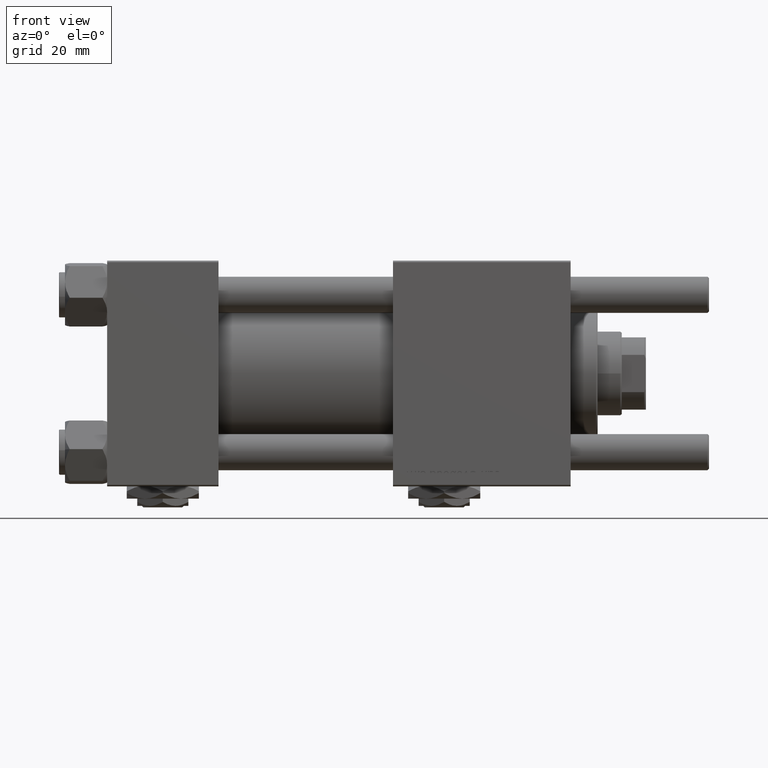
[diagram: clean part render]
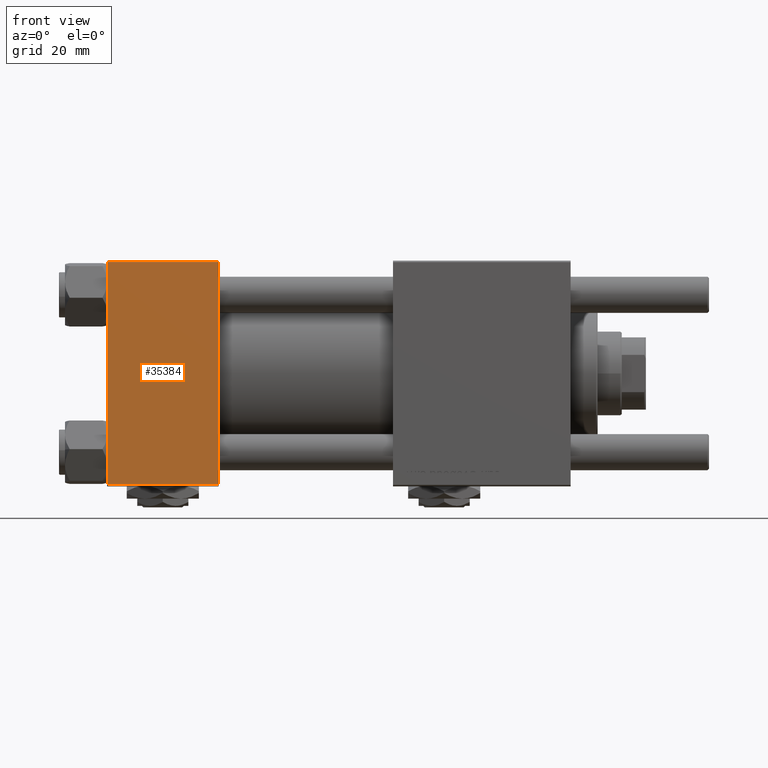
[diagram: same view with one face highlighted and labeled with its STEP entity id]
A machine part, front view. The second image highlights one B-rep face of the part: STEP entity #35384.
In plain terms, the highlighted planar face has unit normal (0, 1, 0).
Its self-contained STEP definition (entity closure, byte-faithful):
#271 = FACE_OUTER_BOUND ( 'NONE', #13562, .T. ) ;
#498 = LINE ( 'NONE', #49209, #49917 ) ;
#1143 = VERTEX_POINT ( 'NONE', #2072 ) ;
#1943 = AXIS2_PLACEMENT_3D ( 'NONE', #36502, #54612, #13929 ) ;
#2072 = CARTESIAN_POINT ( 'NONE',  ( 0.000000000000000000, -37.50000000000000711, 36.99999999999999289 ) ) ;
#3948 = EDGE_CURVE ( 'NONE', #43668, #1143, #25959, .T. ) ;
#10045 = ORIENTED_EDGE ( 'NONE', *, *, #40020, .T. ) ;
#13015 = EDGE_CURVE ( 'NONE', #43668, #16494, #498, .T. ) ;
#13023 = CARTESIAN_POINT ( 'NONE',  ( 37.00000000000000000, -37.50000000000000000, -37.00000000000003553 ) ) ;
#13562 = EDGE_LOOP ( 'NONE', ( #10045, #14781, #53721, #45547 ) ) ;
#13929 = DIRECTION ( 'NONE',  ( 0.000000000000000000, -9.251858538542971581E-17, 1.000000000000000000 ) ) ;
#14392 = VECTOR ( 'NONE', #55009, 1000.000000000000000 ) ;
#14781 = ORIENTED_EDGE ( 'NONE', *, *, #33318, .T. ) ;
#16494 = VERTEX_POINT ( 'NONE', #56845 ) ;
#16680 = VERTEX_POINT ( 'NONE', #36907 ) ;
#17174 = CARTESIAN_POINT ( 'NONE',  ( 37.00000000000000000, -37.50000000000000711, 36.99999999999999289 ) ) ;
#22632 = LINE ( 'NONE', #58293, #14392 ) ;
#23675 = VECTOR ( 'NONE', #40651, 1000.000000000000000 ) ;
#25959 = LINE ( 'NONE', #57751, #39163 ) ;
#33318 = EDGE_CURVE ( 'NONE', #16680, #16494, #35590, .T. ) ;
#35384 = ADVANCED_FACE ( 'NONE', ( #271 ), #36792, .F. ) ;
#35590 = LINE ( 'NONE', #13023, #23675 ) ;
#36502 = CARTESIAN_POINT ( 'NONE',  ( 37.00000000000000000, -37.50000000000000711, 37.49999999999999289 ) ) ;
#36792 = PLANE ( 'NONE',  #1943 ) ;
#36907 = CARTESIAN_POINT ( 'NONE',  ( 0.000000000000000000, -37.50000000000000000, -37.00000000000003553 ) ) ;
#39163 = VECTOR ( 'NONE', #39341, 1000.000000000000000 ) ;
#39341 = DIRECTION ( 'NONE',  ( -1.000000000000000000, 0.000000000000000000, 0.000000000000000000 ) ) ;
#40020 = EDGE_CURVE ( 'NONE', #1143, #16680, #22632, .T. ) ;
#40651 = DIRECTION ( 'NONE',  ( 1.000000000000000000, 0.000000000000000000, 0.000000000000000000 ) ) ;
#43668 = VERTEX_POINT ( 'NONE', #17174 ) ;
#44768 = DIRECTION ( 'NONE',  ( 0.000000000000000000, 9.251858538542971581E-17, -1.000000000000000000 ) ) ;
#45547 = ORIENTED_EDGE ( 'NONE', *, *, #3948, .T. ) ;
#49209 = CARTESIAN_POINT ( 'NONE',  ( 37.00000000000000000, -37.50000000000000711, 37.49999999999999289 ) ) ;
#49917 = VECTOR ( 'NONE', #44768, 1000.000000000000000 ) ;
#53721 = ORIENTED_EDGE ( 'NONE', *, *, #13015, .F. ) ;
#54612 = DIRECTION ( 'NONE',  ( -0.000000000000000000, 1.000000000000000000, 9.251858538542971581E-17 ) ) ;
#55009 = DIRECTION ( 'NONE',  ( 0.000000000000000000, 9.251858538542971581E-17, -1.000000000000000000 ) ) ;
#56845 = CARTESIAN_POINT ( 'NONE',  ( 37.00000000000000000, -37.50000000000000000, -37.00000000000003553 ) ) ;
#57751 = CARTESIAN_POINT ( 'NONE',  ( 37.00000000000000000, -37.50000000000000711, 36.99999999999999289 ) ) ;
#58293 = CARTESIAN_POINT ( 'NONE',  ( 0.000000000000000000, -37.50000000000000711, 37.49999999999999289 ) ) ;